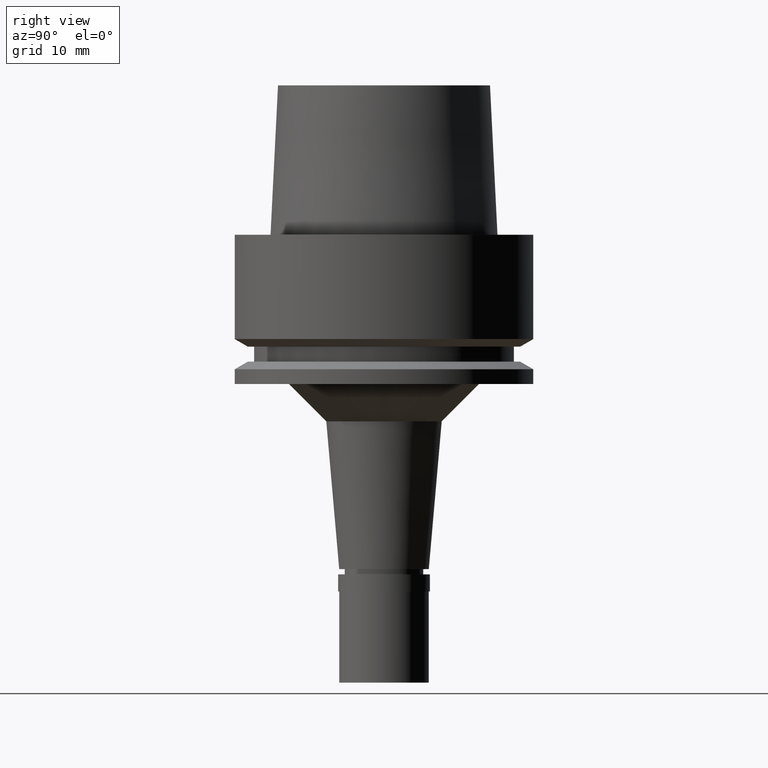
[diagram: clean part render]
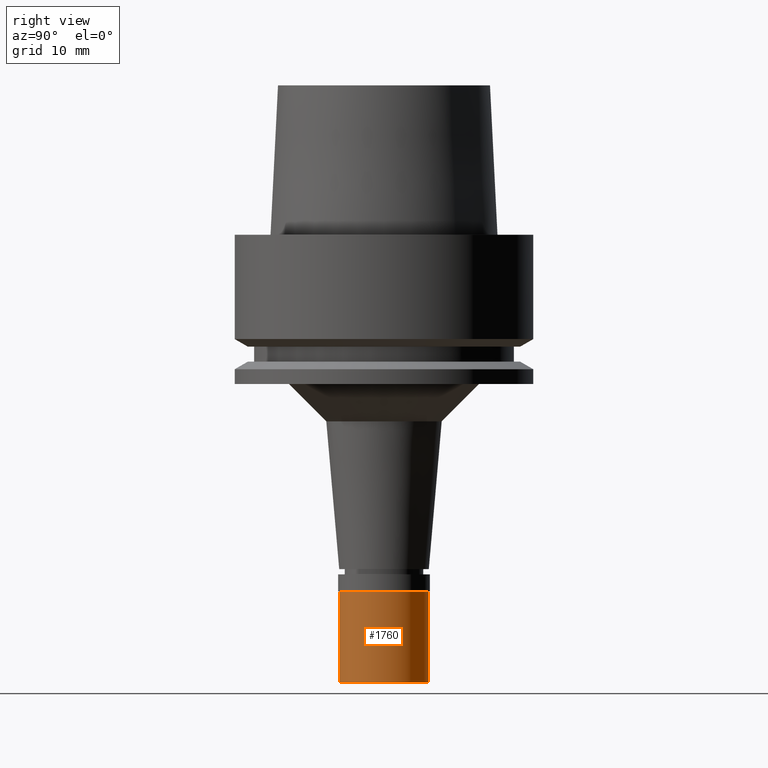
[diagram: same view with one face highlighted and labeled with its STEP entity id]
A machine part, right view. The second image highlights one B-rep face of the part: STEP entity #1760.
In plain terms, the highlighted cylindrical surface (partial cylindrical patch) has radius 6 mm, axis along (0, 0, 1).
Its self-contained STEP definition (entity closure, byte-faithful):
#34 = CARTESIAN_POINT ( 'NONE',  ( 0.0000000000000000000, 6.000000000000000000, -2.299999999999999822 ) ) ;
#78 = ORIENTED_EDGE ( 'NONE', *, *, #432, .T. ) ;
#134 = CARTESIAN_POINT ( 'NONE',  ( 0.0000000000000000000, 0.0000000000000000000, -15.22500000000000142 ) ) ;
#185 = LINE ( 'NONE', #2460, #1541 ) ;
#398 = AXIS2_PLACEMENT_3D ( 'NONE', #989, #2247, #2667 ) ;
#432 = EDGE_CURVE ( 'NONE', #1495, #2295, #185, .T. ) ;
#471 = LINE ( 'NONE', #34, #1132 ) ;
#514 = CARTESIAN_POINT ( 'NONE',  ( 0.0000000000000000000, -6.000000000000000000, -2.299999999999999822 ) ) ;
#547 = AXIS2_PLACEMENT_3D ( 'NONE', #1966, #1753, #2581 ) ;
#630 = ORIENTED_EDGE ( 'NONE', *, *, #2327, .T. ) ;
#650 = CARTESIAN_POINT ( 'NONE',  ( 0.0000000000000000000, 6.000000000000000000, -2.299999999999999822 ) ) ;
#688 = DIRECTION ( 'NONE',  ( 0.0000000000000000000, 0.0000000000000000000, -1.000000000000000000 ) ) ;
#783 = VERTEX_POINT ( 'NONE', #650 ) ;
#989 = CARTESIAN_POINT ( 'NONE',  ( 0.0000000000000000000, 0.0000000000000000000, -14.50000000000000000 ) ) ;
#1132 = VECTOR ( 'NONE', #688, 1000.000000000000000 ) ;
#1181 = FACE_OUTER_BOUND ( 'NONE', #1227, .T. ) ;
#1205 = EDGE_CURVE ( 'NONE', #783, #1734, #471, .T. ) ;
#1210 = CARTESIAN_POINT ( 'NONE',  ( 0.0000000000000000000, 6.000000000000000000, -14.50000000000000000 ) ) ;
#1227 = EDGE_LOOP ( 'NONE', ( #630, #78, #2152, #2572 ) ) ;
#1261 = DIRECTION ( 'NONE',  ( 0.0000000000000000000, 0.0000000000000000000, 1.000000000000000000 ) ) ;
#1290 = CIRCLE ( 'NONE', #547, 6.000000000000000000 ) ;
#1495 = VERTEX_POINT ( 'NONE', #514 ) ;
#1541 = VECTOR ( 'NONE', #2689, 1000.000000000000000 ) ;
#1612 = EDGE_CURVE ( 'NONE', #2295, #1734, #2492, .T. ) ;
#1734 = VERTEX_POINT ( 'NONE', #1210 ) ;
#1753 = DIRECTION ( 'NONE',  ( 0.0000000000000000000, 0.0000000000000000000, -1.000000000000000000 ) ) ;
#1760 = ADVANCED_FACE ( 'NONE', ( #1181 ), #2017, .T. ) ;
#1966 = CARTESIAN_POINT ( 'NONE',  ( 0.0000000000000000000, 0.0000000000000000000, -2.299999999999999822 ) ) ;
#2017 = CYLINDRICAL_SURFACE ( 'NONE', #2600, 6.000000000000000000 ) ;
#2152 = ORIENTED_EDGE ( 'NONE', *, *, #1612, .T. ) ;
#2247 = DIRECTION ( 'NONE',  ( 0.0000000000000000000, 0.0000000000000000000, 1.000000000000000000 ) ) ;
#2295 = VERTEX_POINT ( 'NONE', #2369 ) ;
#2327 = EDGE_CURVE ( 'NONE', #783, #1495, #1290, .T. ) ;
#2369 = CARTESIAN_POINT ( 'NONE',  ( 0.0000000000000000000, -6.000000000000000000, -14.50000000000000000 ) ) ;
#2460 = CARTESIAN_POINT ( 'NONE',  ( 0.0000000000000000000, -6.000000000000000000, -2.299999999999999822 ) ) ;
#2492 = CIRCLE ( 'NONE', #398, 6.000000000000000000 ) ;
#2522 = DIRECTION ( 'NONE',  ( 0.0000000000000000000, 1.000000000000000000, 0.0000000000000000000 ) ) ;
#2572 = ORIENTED_EDGE ( 'NONE', *, *, #1205, .F. ) ;
#2581 = DIRECTION ( 'NONE',  ( 0.0000000000000000000, 1.000000000000000000, 0.0000000000000000000 ) ) ;
#2600 = AXIS2_PLACEMENT_3D ( 'NONE', #134, #1261, #2522 ) ;
#2667 = DIRECTION ( 'NONE',  ( 0.0000000000000000000, -1.000000000000000000, 0.0000000000000000000 ) ) ;
#2689 = DIRECTION ( 'NONE',  ( 0.0000000000000000000, 0.0000000000000000000, -1.000000000000000000 ) ) ;